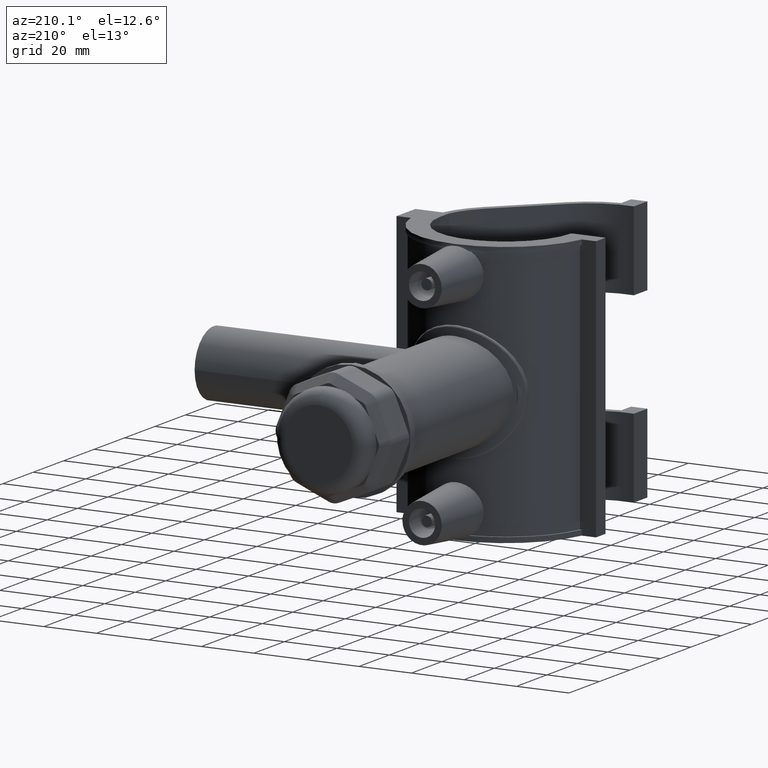
[diagram: clean part render]
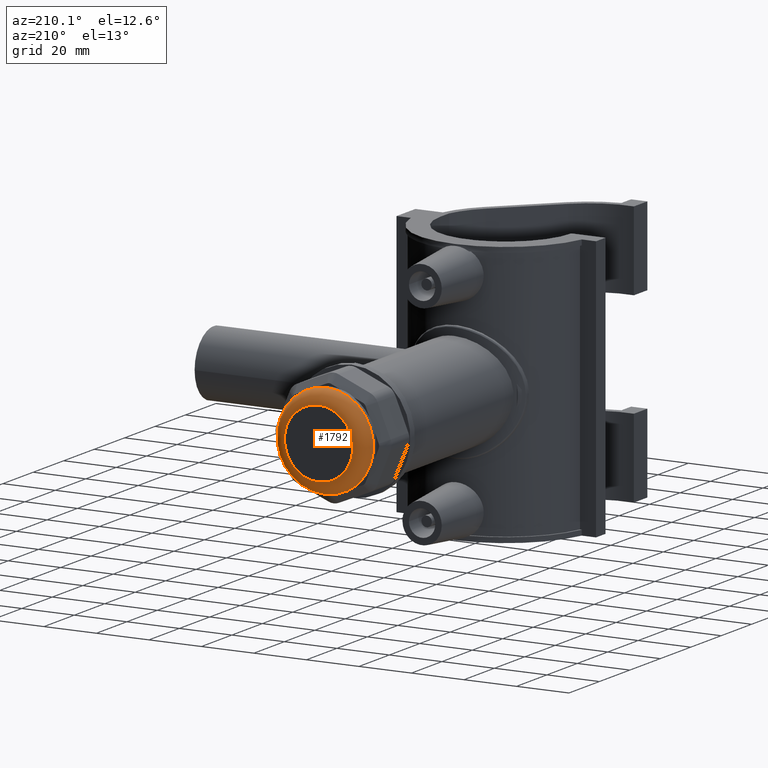
[diagram: same view with one face highlighted and labeled with its STEP entity id]
A machine part, auxiliary view. The second image highlights one B-rep face of the part: STEP entity #1792.
In plain terms, the highlighted toroidal blend (fillet) surface has major radius 13 mm and minor (blend) radius 5 mm.
Its self-contained STEP definition (entity closure, byte-faithful):
#22=TOROIDAL_SURFACE('',#1947,13.,5.);
#429=CIRCLE('',#1948,18.);
#430=CIRCLE('',#1949,13.);
#482=FACE_BOUND('',#658,.T.);
#540=FACE_OUTER_BOUND('',#657,.T.);
#657=EDGE_LOOP('',(#1370));
#658=EDGE_LOOP('',(#1371));
#844=VERTEX_POINT('',#3067);
#845=VERTEX_POINT('',#3069);
#1052=EDGE_CURVE('',#844,#844,#429,.T.);
#1053=EDGE_CURVE('',#845,#845,#430,.T.);
#1370=ORIENTED_EDGE('',*,*,#1052,.T.);
#1371=ORIENTED_EDGE('',*,*,#1053,.T.);
#1792=ADVANCED_FACE('',(#540,#482),#22,.T.);
#1947=AXIS2_PLACEMENT_3D('',#3066,#2282,#2283);
#1948=AXIS2_PLACEMENT_3D('',#3068,#2284,#2285);
#1949=AXIS2_PLACEMENT_3D('',#3070,#2286,#2287);
#2282=DIRECTION('center_axis',(0.,1.,3.06161699786838E-16));
#2283=DIRECTION('ref_axis',(0.,0.,1.));
#2284=DIRECTION('center_axis',(0.,1.,3.06161699786838E-16));
#2285=DIRECTION('ref_axis',(6.12323399573677E-17,3.08395284618099E-16,-1.));
#2286=DIRECTION('center_axis',(0.,-1.,-3.06161699786838E-16));
#2287=DIRECTION('ref_axis',(6.12323399573677E-17,3.06161699786838E-16,-1.));
#3066=CARTESIAN_POINT('Origin',(0.,118.,2.8473038080176E-14));
#3067=CARTESIAN_POINT('',(1.10218211923262E-15,118.,18.));
#3068=CARTESIAN_POINT('Origin',(0.,118.,2.8473038080176E-14));
#3069=CARTESIAN_POINT('',(-2.38806125833734E-15,123.,13.));
#3070=CARTESIAN_POINT('Origin',(0.,123.,3.00038465791102E-14));